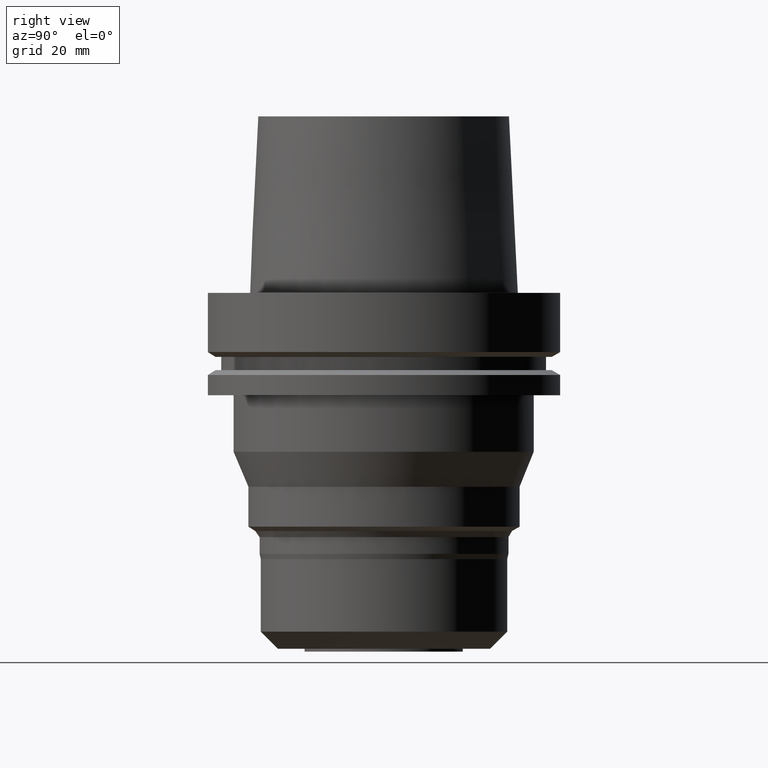
[diagram: clean part render]
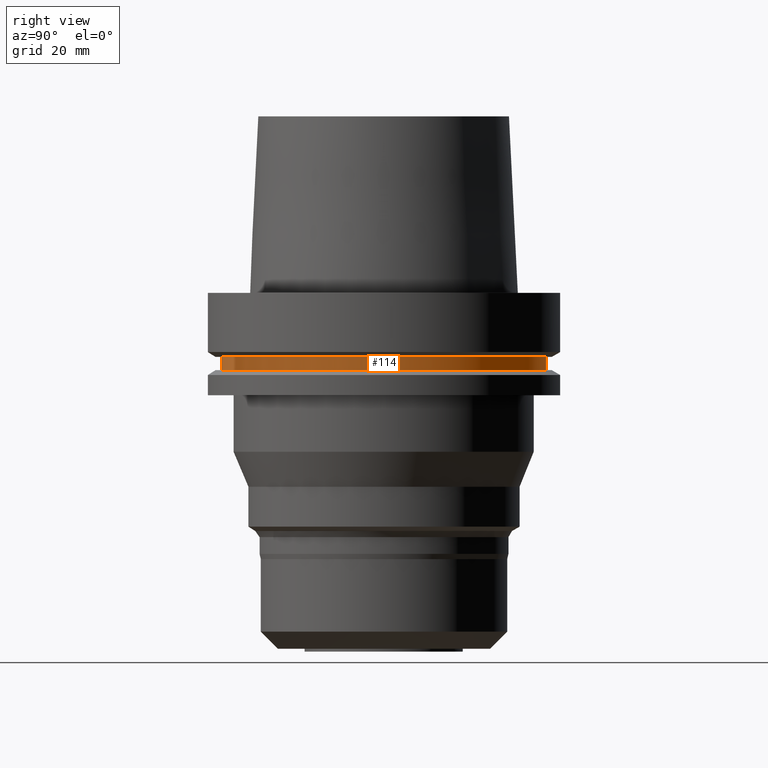
[diagram: same view with one face highlighted and labeled with its STEP entity id]
A machine part, right view. The second image highlights one B-rep face of the part: STEP entity #114.
In plain terms, the highlighted cylindrical surface (bore or boss wall) has radius 46 mm, axis along (0, 0, -1).
Its self-contained STEP definition (entity closure, byte-faithful):
#86=EDGE_CURVE('Unnamed[1]',#227,#227,#228,.T.);
#114=ADVANCED_FACE('Unnamed[1]',(#270,#271),#272,.T.);
#122=EDGE_CURVE('Unnamed[1]',#284,#284,#285,.T.);
#227=VERTEX_POINT('',#423);
#228=CIRCLE('',#424,46.0000000000001);
#270=FACE_BOUND('',#477,.T.);
#271=FACE_BOUND('',#478,.T.);
#272=CYLINDRICAL_SURFACE('',#479,46.0000000000001);
#284=VERTEX_POINT('',#494);
#285=CIRCLE('',#495,46.0000000000001);
#423=CARTESIAN_POINT('',(1.33945743656734E-015,46.0,-21.8749999999988));
#424=AXIS2_PLACEMENT_3D('',#644,#645,#646);
#477=EDGE_LOOP('',(#692));
#478=EDGE_LOOP('',(#693));
#479=AXIS2_PLACEMENT_3D('',#694,#695,#696);
#494=CARTESIAN_POINT('',(1.10983616172727E-015,46.0,-18.1249999999997));
#495=AXIS2_PLACEMENT_3D('',#709,#710,#711);
#644=CARTESIAN_POINT('',(1.33945743656735E-015,-1.45967589476726E-014,-21.8749999999988));
#645=DIRECTION('',(6.12323399573677E-017,8.53138753389863E-016,-1.0));
#646=DIRECTION('',(-5.7066834909142E-032,1.0,8.53138753389863E-016));
#692=ORIENTED_EDGE('',*,*,#86,.F.);
#693=ORIENTED_EDGE('',*,*,#122,.T.);
#694=CARTESIAN_POINT('',(1.22464679914731E-015,-1.61963941102782E-014,-19.9999999999993));
#695=DIRECTION('',(6.12323399573677E-017,8.53138753389863E-016,-1.0));
#696=DIRECTION('',(-5.7066834909142E-032,1.0,8.53138753389863E-016));
#709=CARTESIAN_POINT('',(1.10983616172727E-015,-1.77960292728838E-014,-18.1249999999997));
#710=DIRECTION('',(6.12323399573677E-017,8.53138753389863E-016,-1.0));
#711=DIRECTION('',(-5.7066834909142E-032,1.0,8.53138753389863E-016));